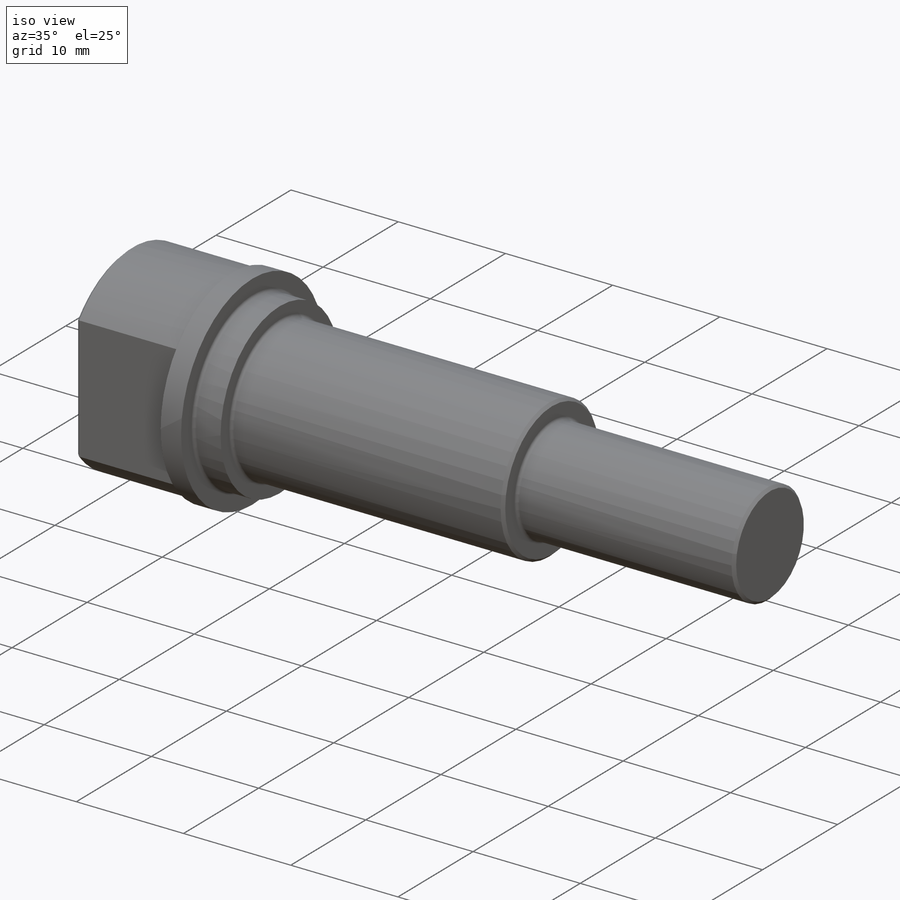
[diagram: iso view]
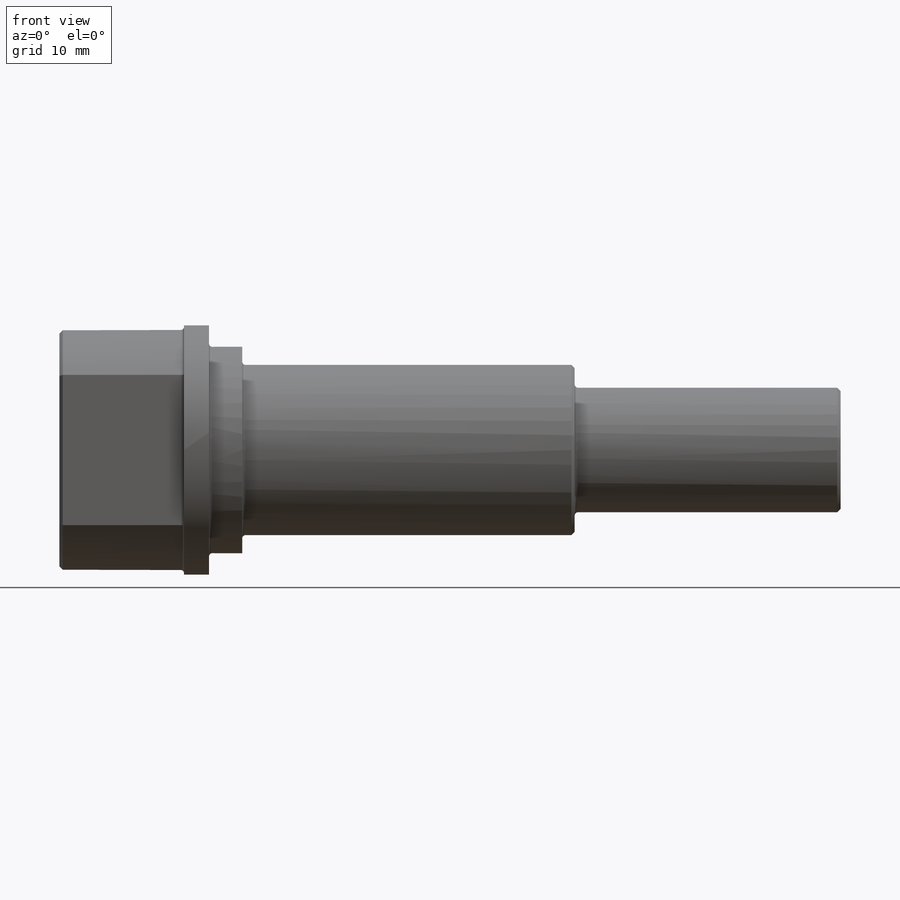
[diagram: front view]
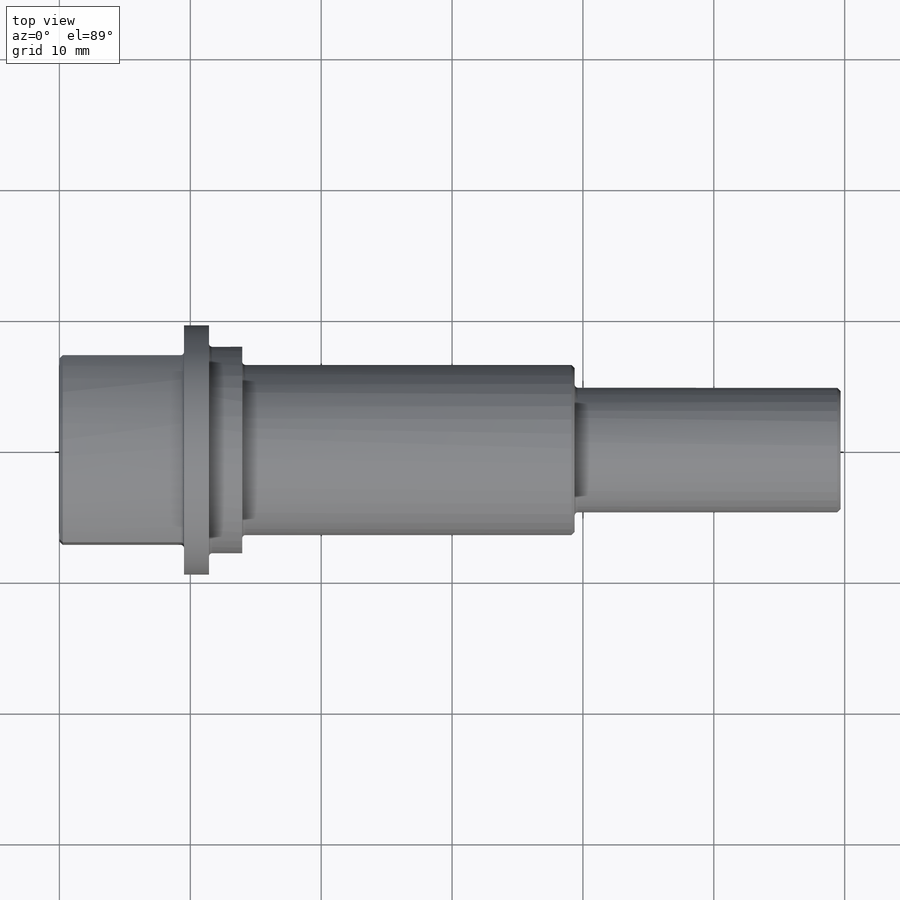
[diagram: top view]
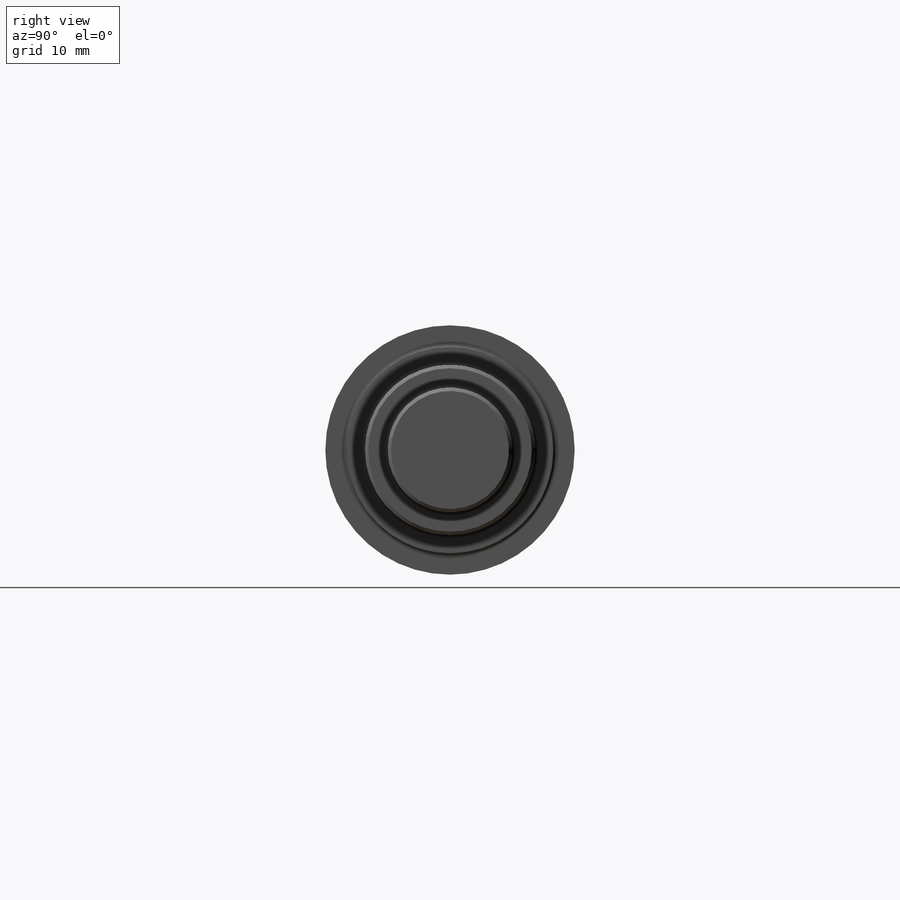
[diagram: right view]
SOLIDWORKS PART (.sldprt)
format: sldprt  version: not decoded by parser v0  size: 354,816 bytes
history: native  units: mm
features: sketch x2, material x1, revolve x1, thread x1, cut_extrude x1, chamfer x1, fillet x1 (+11 scaffold rows collapsed)
feature tree (19):
  scaffold x11  (default folders/planes/origin — collapsed)
  material  "Plain Carbon Steel"
  sketch  "Sketch1"  dims[c1.D1=18.3388mm c1.D2=9.525mm c1.D3=15.7734mm c1.D4=19.05mm c1.D5=13.0mm c1.D6=9.525mm c1.D7=1.905mm c1.D8=2.54mm c1.D9=25.4mm c1.D10=20.32mm c1.D11=59.69mm c2.D11=60.0deg c2.D12=0.635mm]
  revolve  "Revolve1"  [1 undecoded]
  thread  "Cosmetic Thread1"  Diameter=8.26516mm  [1 undecoded]
  sketch  "Sketch2"  dims[D1=14.3002mm]
  cut_extrude  "Cut-Extrude1"  [1 undecoded]
  chamfer  "Chamfer1"  Distance=0.254mm Angle=45deg
  fillet  "Fillet1"  Radius=0.254mm
decode coverage: 5 of 7 modeling features carry decoded parameters
note: 3 parameter values undecoded
note: suppression state not decoded; provenance and decode notes live in map.json
